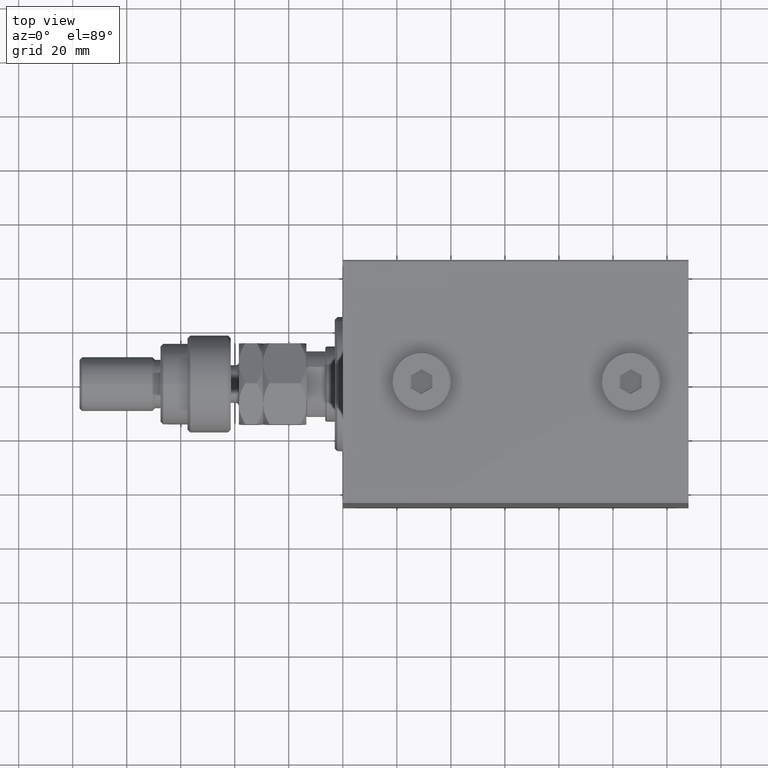
[diagram: clean part render]
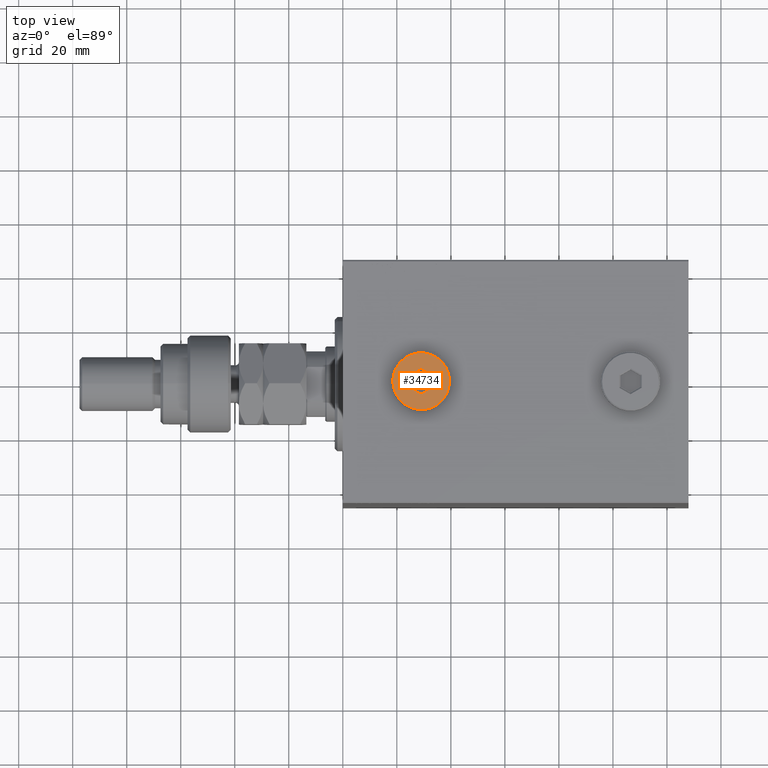
[diagram: same view with one face highlighted and labeled with its STEP entity id]
A machine part, top view. The second image highlights one B-rep face of the part: STEP entity #34734.
In plain terms, the highlighted planar face has unit normal (0, 0, 1).
Its self-contained STEP definition (entity closure, byte-faithful):
#1205 = DIRECTION ( 'NONE',  ( 1.024305408229881337E-16, 1.000000000000000000, 0.000000000000000000 ) ) ;
#1647 = ORIENTED_EDGE ( 'NONE', *, *, #48188, .T. ) ;
#1793 = CARTESIAN_POINT ( 'NONE',  ( 0.000000000000000000, 0.000000000000000000, 5.000000000000000000 ) ) ;
#1842 = VECTOR ( 'NONE', #27831, 1000.000000000000000 ) ;
#2263 = CARTESIAN_POINT ( 'NONE',  ( -3.916666666666664742, -2.549963688920843907, 5.000000000000000000 ) ) ;
#3215 = VERTEX_POINT ( 'NONE', #13725 ) ;
#3392 = ORIENTED_EDGE ( 'NONE', *, *, #25292, .T. ) ;
#3457 = VECTOR ( 'NONE', #20473, 1000.000000000000114 ) ;
#4057 = EDGE_CURVE ( 'NONE', #38706, #24351, #41941, .T. ) ;
#5635 = LINE ( 'NONE', #20723, #3457 ) ;
#6301 = AXIS2_PLACEMENT_3D ( 'NONE', #29956, #44814, #14618 ) ;
#6347 = ORIENTED_EDGE ( 'NONE', *, *, #47802, .T. ) ;
#7237 = EDGE_LOOP ( 'NONE', ( #16426, #6347 ) ) ;
#8140 = CIRCLE ( 'NONE', #25228, 10.50000000000000178 ) ;
#8435 = CARTESIAN_POINT ( 'NONE',  ( 0.000000000000000000, 0.000000000000000000, 5.000000000000000000 ) ) ;
#8766 = LINE ( 'NONE', #30437, #33681 ) ;
#8979 = EDGE_CURVE ( 'NONE', #40883, #3215, #45054, .T. ) ;
#12235 = VERTEX_POINT ( 'NONE', #15545 ) ;
#13362 = EDGE_CURVE ( 'NONE', #17442, #38706, #46149, .T. ) ;
#13725 = CARTESIAN_POINT ( 'NONE',  ( 10.50000000000000178, 1.316495309083404815E-15, 5.000000000000000000 ) ) ;
#13943 = AXIS2_PLACEMENT_3D ( 'NONE', #8435, #34959, #37915 ) ;
#14318 = VECTOR ( 'NONE', #1205, 1000.000000000000000 ) ;
#14618 = DIRECTION ( 'NONE',  ( 1.000000000000000000, 0.000000000000000000, -0.000000000000000000 ) ) ;
#15242 = VERTEX_POINT ( 'NONE', #32942 ) ;
#15545 = CARTESIAN_POINT ( 'NONE',  ( -4.166666666666665186, -2.405626121623437363, 5.000000000000000000 ) ) ;
#16426 = ORIENTED_EDGE ( 'NONE', *, *, #8979, .T. ) ;
#17095 = CARTESIAN_POINT ( 'NONE',  ( -4.166666666666664298, 2.405626121623439584, 5.000000000000000000 ) ) ;
#17442 = VERTEX_POINT ( 'NONE', #29955 ) ;
#18731 = ORIENTED_EDGE ( 'NONE', *, *, #4057, .T. ) ;
#20473 = DIRECTION ( 'NONE',  ( 0.8660254037844388186, 0.4999999999999997780, 0.000000000000000000 ) ) ;
#20723 = CARTESIAN_POINT ( 'NONE',  ( -0.2499999999999992506, 4.666914675949470848, 5.000000000000000000 ) ) ;
#22465 = VECTOR ( 'NONE', #37828, 1000.000000000000000 ) ;
#23206 = EDGE_CURVE ( 'NONE', #15242, #17442, #8766, .T. ) ;
#23384 = DIRECTION ( 'NONE',  ( 0.8660254037844387076, -0.4999999999999998335, 0.000000000000000000 ) ) ;
#24351 = VERTEX_POINT ( 'NONE', #30158 ) ;
#25228 = AXIS2_PLACEMENT_3D ( 'NONE', #1793, #34901, #27837 ) ;
#25292 = EDGE_CURVE ( 'NONE', #12235, #40988, #42104, .T. ) ;
#26773 = FACE_BOUND ( 'NONE', #41129, .T. ) ;
#27003 = CARTESIAN_POINT ( 'NONE',  ( -4.166666666666664298, 2.116950987028627829, 5.000000000000000000 ) ) ;
#27831 = DIRECTION ( 'NONE',  ( -0.8660254037844384856, 0.5000000000000002220, 0.000000000000000000 ) ) ;
#27837 = DIRECTION ( 'NONE',  ( 1.000000000000000000, 0.000000000000000000, 0.000000000000000000 ) ) ;
#28072 = VECTOR ( 'NONE', #45199, 1000.000000000000000 ) ;
#29955 = CARTESIAN_POINT ( 'NONE',  ( 4.166666666666663410, 2.405626121623439584, 5.000000000000000000 ) ) ;
#29956 = CARTESIAN_POINT ( 'NONE',  ( 0.000000000000000000, 0.000000000000000000, 5.000000000000000000 ) ) ;
#30158 = CARTESIAN_POINT ( 'NONE',  ( -8.363929151985410416E-16, -4.811252243246877391, 5.000000000000000000 ) ) ;
#30159 = ORIENTED_EDGE ( 'NONE', *, *, #23206, .T. ) ;
#30437 = CARTESIAN_POINT ( 'NONE',  ( 3.916666666666664742, 2.549963688920845239, 5.000000000000000000 ) ) ;
#32942 = CARTESIAN_POINT ( 'NONE',  ( -6.281144585932674641E-17, 4.811252243246876503, 5.000000000000000000 ) ) ;
#33111 = PLANE ( 'NONE',  #6301 ) ;
#33681 = VECTOR ( 'NONE', #23384, 1000.000000000000000 ) ;
#34072 = FACE_OUTER_BOUND ( 'NONE', #7237, .T. ) ;
#34472 = CARTESIAN_POINT ( 'NONE',  ( 4.166666666666664298, -2.116950987028627384, 5.000000000000000000 ) ) ;
#34734 = ADVANCED_FACE ( 'NONE', ( #26773, #34072 ), #33111, .T. ) ;
#34901 = DIRECTION ( 'NONE',  ( 0.000000000000000000, 0.000000000000000000, 1.000000000000000000 ) ) ;
#34959 = DIRECTION ( 'NONE',  ( 0.000000000000000000, 0.000000000000000000, 1.000000000000000000 ) ) ;
#35389 = LINE ( 'NONE', #2263, #1842 ) ;
#36445 = ORIENTED_EDGE ( 'NONE', *, *, #45102, .T. ) ;
#37600 = CARTESIAN_POINT ( 'NONE',  ( -10.50000000000000178, 0.000000000000000000, 5.000000000000000000 ) ) ;
#37828 = DIRECTION ( 'NONE',  ( -0.8660254037844387076, -0.4999999999999998335, 0.000000000000000000 ) ) ;
#37915 = DIRECTION ( 'NONE',  ( 1.000000000000000000, 0.000000000000000000, 0.000000000000000000 ) ) ;
#38706 = VERTEX_POINT ( 'NONE', #39245 ) ;
#39245 = CARTESIAN_POINT ( 'NONE',  ( 4.166666666666664298, -2.405626121623439584, 5.000000000000000000 ) ) ;
#40842 = ORIENTED_EDGE ( 'NONE', *, *, #13362, .T. ) ;
#40883 = VERTEX_POINT ( 'NONE', #37600 ) ;
#40988 = VERTEX_POINT ( 'NONE', #17095 ) ;
#41129 = EDGE_LOOP ( 'NONE', ( #3392, #1647, #30159, #40842, #18731, #36445 ) ) ;
#41469 = CARTESIAN_POINT ( 'NONE',  ( 0.2499999999999981681, -4.666914675949471736, 5.000000000000000000 ) ) ;
#41941 = LINE ( 'NONE', #41469, #22465 ) ;
#42104 = LINE ( 'NONE', #27003, #14318 ) ;
#44814 = DIRECTION ( 'NONE',  ( 0.000000000000000000, 0.000000000000000000, 1.000000000000000000 ) ) ;
#45054 = CIRCLE ( 'NONE', #13943, 10.50000000000000178 ) ;
#45102 = EDGE_CURVE ( 'NONE', #24351, #12235, #35389, .T. ) ;
#45199 = DIRECTION ( 'NONE',  ( 1.024305408229881337E-16, -1.000000000000000000, 0.000000000000000000 ) ) ;
#46149 = LINE ( 'NONE', #34472, #28072 ) ;
#47802 = EDGE_CURVE ( 'NONE', #3215, #40883, #8140, .T. ) ;
#48188 = EDGE_CURVE ( 'NONE', #40988, #15242, #5635, .T. ) ;